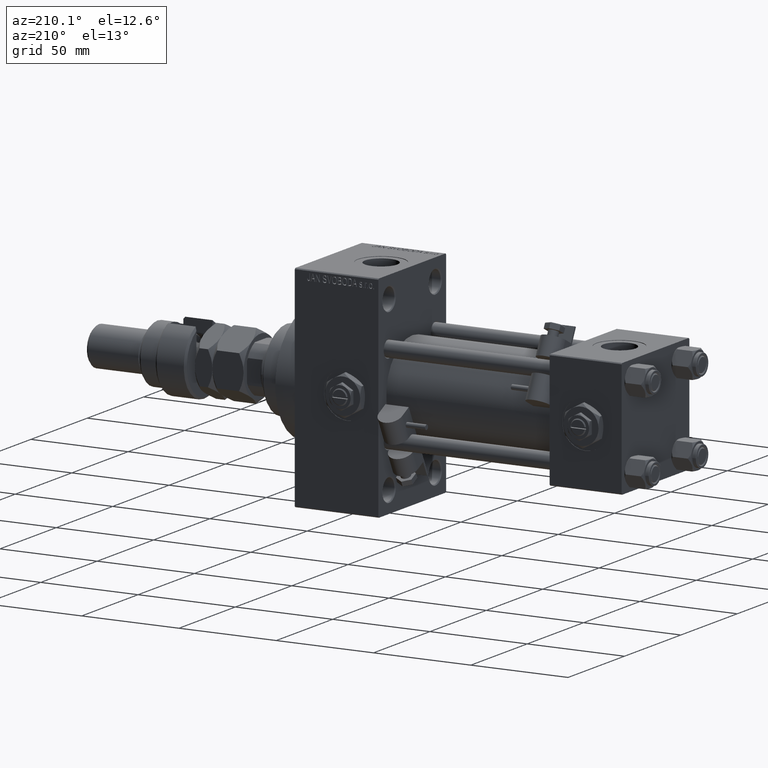
[diagram: clean part render]
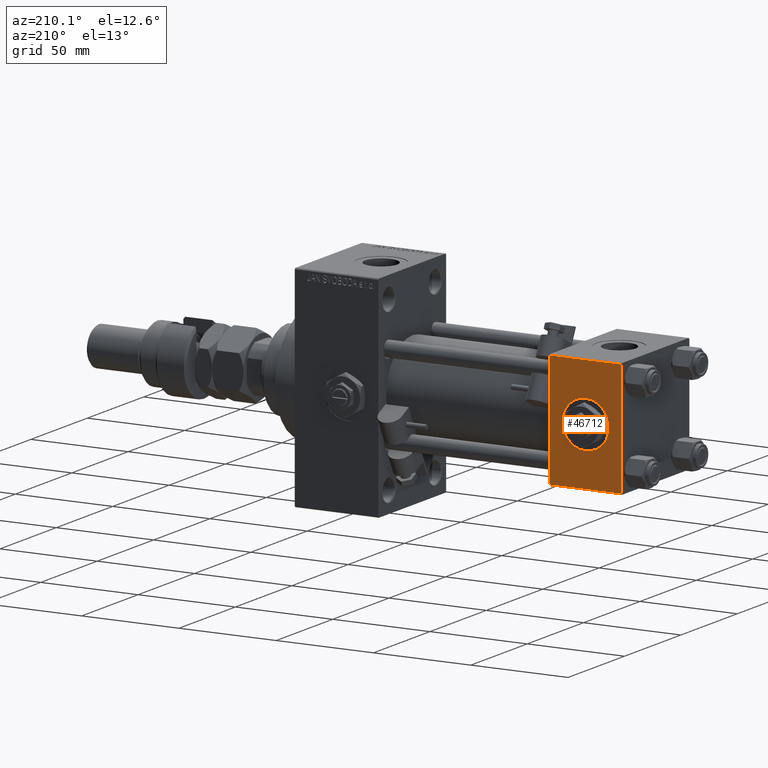
[diagram: same view with one face highlighted and labeled with its STEP entity id]
A machine part, auxiliary view. The second image highlights one B-rep face of the part: STEP entity #46712.
In plain terms, the highlighted planar face has unit normal (0, 1, 0).
Its self-contained STEP definition (entity closure, byte-faithful):
#156 = VERTEX_POINT ( 'NONE', #14773 ) ;
#1290 = CARTESIAN_POINT ( 'NONE',  ( 37.00000000000000000, 29.99999999999999289, 29.50000000000000000 ) ) ;
#1576 = EDGE_CURVE ( 'NONE', #4223, #24252, #46477, .T. ) ;
#3310 = PLANE ( 'NONE',  #41102 ) ;
#4223 = VERTEX_POINT ( 'NONE', #28437 ) ;
#5527 = CARTESIAN_POINT ( 'NONE',  ( 37.00000000000000000, 29.99999999999999289, 29.50000000000000000 ) ) ;
#6864 = LINE ( 'NONE', #27175, #14675 ) ;
#7199 = EDGE_CURVE ( 'NONE', #24252, #156, #6864, .T. ) ;
#7266 = CARTESIAN_POINT ( 'NONE',  ( 0.000000000000000000, 29.99999999999999289, 30.00000000000000000 ) ) ;
#7644 = FACE_OUTER_BOUND ( 'NONE', #29839, .T. ) ;
#8131 = CARTESIAN_POINT ( 'NONE',  ( 37.00000000000000000, 29.99999999999999289, -29.50000000000000000 ) ) ;
#8223 = CIRCLE ( 'NONE', #9913, 12.00000000000000178 ) ;
#8394 = ORIENTED_EDGE ( 'NONE', *, *, #19863, .F. ) ;
#8561 = ORIENTED_EDGE ( 'NONE', *, *, #23892, .T. ) ;
#9394 = EDGE_LOOP ( 'NONE', ( #8394, #19249 ) ) ;
#9856 = DIRECTION ( 'NONE',  ( 0.000000000000000000, 0.000000000000000000, -1.000000000000000000 ) ) ;
#9913 = AXIS2_PLACEMENT_3D ( 'NONE', #30430, #38267, #34213 ) ;
#11876 = LINE ( 'NONE', #7266, #41903 ) ;
#14675 = VECTOR ( 'NONE', #9856, 1000.000000000000000 ) ;
#14773 = CARTESIAN_POINT ( 'NONE',  ( 37.00000000000000000, 29.99999999999999289, -29.50000000000000000 ) ) ;
#17323 = CARTESIAN_POINT ( 'NONE',  ( 18.50000000000000000, 29.99999999999999289, 0.000000000000000000 ) ) ;
#17809 = DIRECTION ( 'NONE',  ( 1.000000000000000000, 0.000000000000000000, 0.000000000000000000 ) ) ;
#18128 = ORIENTED_EDGE ( 'NONE', *, *, #43186, .F. ) ;
#19249 = ORIENTED_EDGE ( 'NONE', *, *, #42024, .F. ) ;
#19831 = DIRECTION ( 'NONE',  ( -0.000000000000000000, 1.000000000000000000, 0.000000000000000000 ) ) ;
#19863 = EDGE_CURVE ( 'NONE', #42878, #44718, #8223, .T. ) ;
#20320 = AXIS2_PLACEMENT_3D ( 'NONE', #17323, #46242, #38140 ) ;
#21894 = CARTESIAN_POINT ( 'NONE',  ( 18.50000000000000000, 29.99999999999999289, -12.00000000000000178 ) ) ;
#23892 = EDGE_CURVE ( 'NONE', #156, #47653, #44651, .T. ) ;
#24252 = VERTEX_POINT ( 'NONE', #5527 ) ;
#24639 = DIRECTION ( 'NONE',  ( -1.000000000000000000, 0.000000000000000000, 0.000000000000000000 ) ) ;
#27175 = CARTESIAN_POINT ( 'NONE',  ( 37.00000000000000000, 29.99999999999999289, 30.00000000000000000 ) ) ;
#28437 = CARTESIAN_POINT ( 'NONE',  ( 0.000000000000000000, 29.99999999999999289, 29.50000000000000000 ) ) ;
#29839 = EDGE_LOOP ( 'NONE', ( #45760, #8561, #18128, #52158 ) ) ;
#30355 = CARTESIAN_POINT ( 'NONE',  ( 0.000000000000000000, 29.99999999999999289, -29.50000000000000000 ) ) ;
#30430 = CARTESIAN_POINT ( 'NONE',  ( 18.50000000000000000, 29.99999999999999289, 0.000000000000000000 ) ) ;
#33434 = VECTOR ( 'NONE', #17809, 1000.000000000000000 ) ;
#34213 = DIRECTION ( 'NONE',  ( 0.000000000000000000, 0.000000000000000000, 1.000000000000000000 ) ) ;
#37090 = CARTESIAN_POINT ( 'NONE',  ( 18.50000000000000000, 29.99999999999999289, 12.00000000000000178 ) ) ;
#38140 = DIRECTION ( 'NONE',  ( 0.000000000000000000, 0.000000000000000000, 1.000000000000000000 ) ) ;
#38267 = DIRECTION ( 'NONE',  ( 0.000000000000000000, 1.000000000000000000, 0.000000000000000000 ) ) ;
#40375 = FACE_BOUND ( 'NONE', #9394, .T. ) ;
#41102 = AXIS2_PLACEMENT_3D ( 'NONE', #52011, #19831, #52811 ) ;
#41903 = VECTOR ( 'NONE', #53241, 1000.000000000000000 ) ;
#42024 = EDGE_CURVE ( 'NONE', #44718, #42878, #48808, .T. ) ;
#42878 = VERTEX_POINT ( 'NONE', #37090 ) ;
#43186 = EDGE_CURVE ( 'NONE', #4223, #47653, #11876, .T. ) ;
#43774 = VECTOR ( 'NONE', #24639, 1000.000000000000000 ) ;
#44651 = LINE ( 'NONE', #8131, #43774 ) ;
#44718 = VERTEX_POINT ( 'NONE', #21894 ) ;
#45760 = ORIENTED_EDGE ( 'NONE', *, *, #7199, .T. ) ;
#46242 = DIRECTION ( 'NONE',  ( 0.000000000000000000, 1.000000000000000000, 0.000000000000000000 ) ) ;
#46477 = LINE ( 'NONE', #1290, #33434 ) ;
#46712 = ADVANCED_FACE ( 'NONE', ( #40375, #7644 ), #3310, .T. ) ;
#47653 = VERTEX_POINT ( 'NONE', #30355 ) ;
#48808 = CIRCLE ( 'NONE', #20320, 12.00000000000000178 ) ;
#52011 = CARTESIAN_POINT ( 'NONE',  ( 37.00000000000000000, 29.99999999999999289, 30.00000000000000000 ) ) ;
#52158 = ORIENTED_EDGE ( 'NONE', *, *, #1576, .T. ) ;
#52811 = DIRECTION ( 'NONE',  ( 0.000000000000000000, -0.000000000000000000, 1.000000000000000000 ) ) ;
#53241 = DIRECTION ( 'NONE',  ( 0.000000000000000000, 0.000000000000000000, -1.000000000000000000 ) ) ;